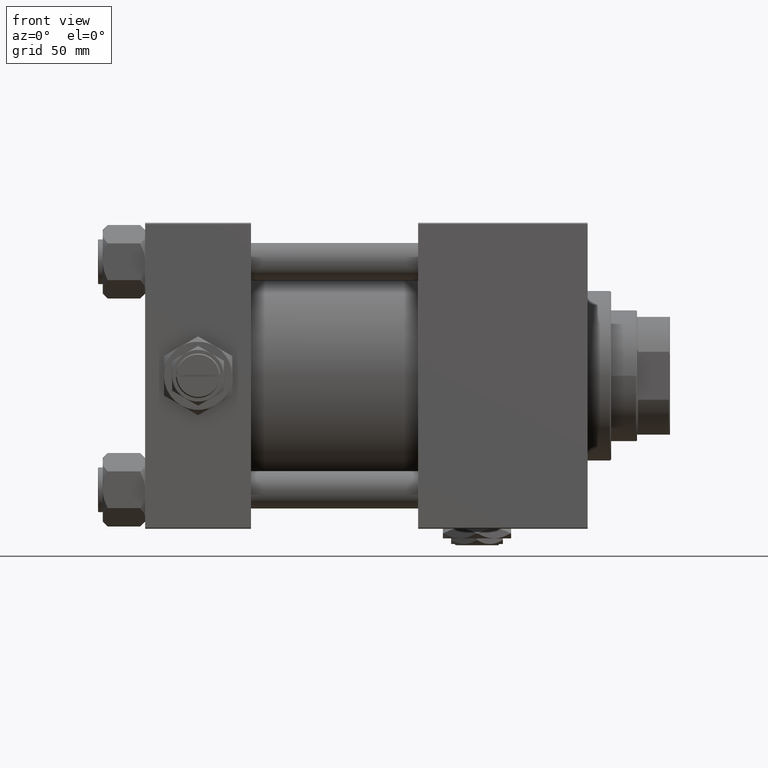
[diagram: clean part render]
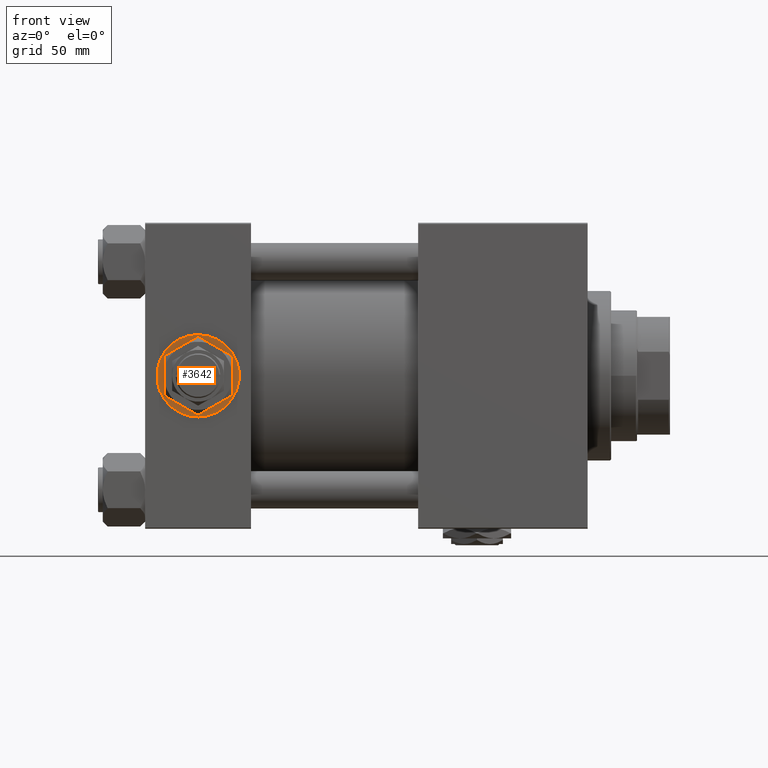
[diagram: same view with one face highlighted and labeled with its STEP entity id]
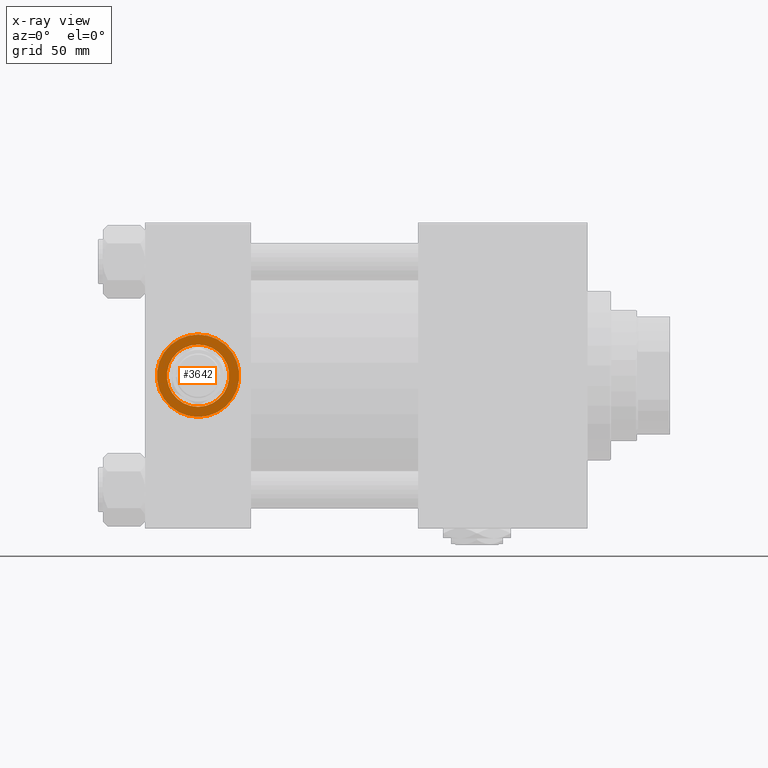
[diagram: x-ray of the same camera — body ghosted, the highlighted face saturated]
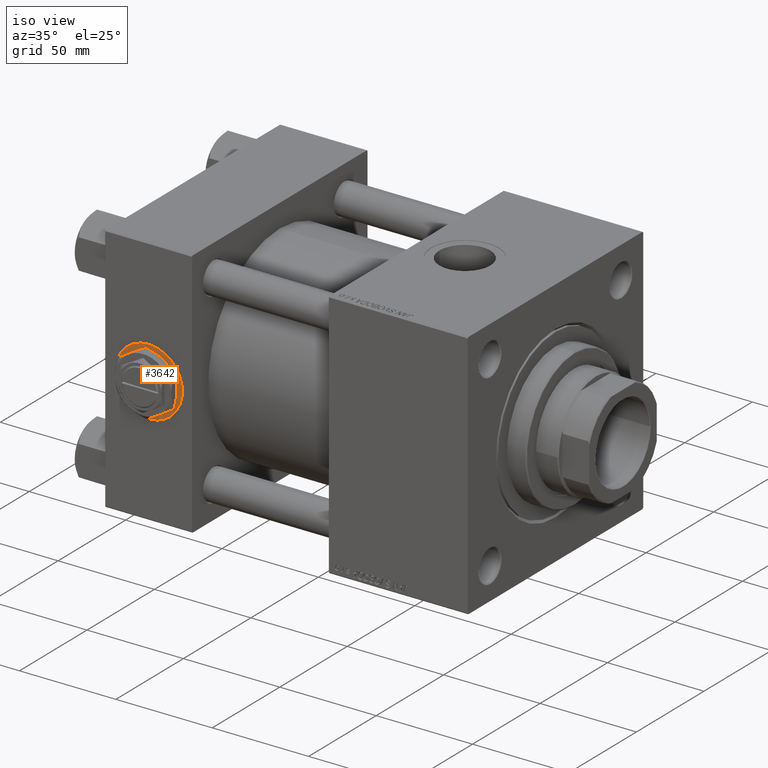
[diagram: same view with one face highlighted and labeled with its STEP entity id]
A machine part, front view. The second image highlights one B-rep face of the part: STEP entity #3642.
The next image is the same camera in x-ray: the body ghosted, the highlighted face saturated — about 0% of this face is hidden behind the body in this view.
A second angle (iso view) of the same face is appended — the face is thin or edge-on in the first view.
In plain terms, the highlighted planar face has unit normal (0, -1, -0).
Its self-contained STEP definition (entity closure, byte-faithful):
#738 = DIRECTION ( 'NONE',  ( 0.000000000000000000, 0.000000000000000000, -1.000000000000000000 ) ) ;
#1194 = AXIS2_PLACEMENT_3D ( 'NONE', #46401, #30385, #4585 ) ;
#3642 = ADVANCED_FACE ( 'NONE', ( #37637, #12837 ), #28843, .T. ) ;
#4585 = DIRECTION ( 'NONE',  ( 0.000000000000000000, 0.000000000000000000, -1.000000000000000000 ) ) ;
#5023 = EDGE_CURVE ( 'NONE', #13591, #19489, #39690, .T. ) ;
#5174 = CARTESIAN_POINT ( 'NONE',  ( 22.50000000000000000, -64.79999999999999716, -13.22000000000000419 ) ) ;
#5371 = CIRCLE ( 'NONE', #7085, 13.22000000000000419 ) ;
#6622 = CARTESIAN_POINT ( 'NONE',  ( 22.50000000000000000, -64.79999999999999716, 1.734723475976770117E-17 ) ) ;
#6964 = DIRECTION ( 'NONE',  ( 0.000000000000000000, -1.000000000000000000, -8.673617379884036705E-17 ) ) ;
#7085 = AXIS2_PLACEMENT_3D ( 'NONE', #25011, #8748, #738 ) ;
#8574 = DIRECTION ( 'NONE',  ( 0.000000000000000000, -1.000000000000000000, -8.673617379884036705E-17 ) ) ;
#8748 = DIRECTION ( 'NONE',  ( 0.000000000000000000, -1.000000000000000000, -8.673617379884036705E-17 ) ) ;
#10969 = CARTESIAN_POINT ( 'NONE',  ( 22.50000000000000000, -64.79999999999999716, 1.734723475976807403E-17 ) ) ;
#12837 = FACE_OUTER_BOUND ( 'NONE', #35101, .T. ) ;
#13591 = VERTEX_POINT ( 'NONE', #5174 ) ;
#13653 = ORIENTED_EDGE ( 'NONE', *, *, #16231, .T. ) ;
#13688 = CARTESIAN_POINT ( 'NONE',  ( 22.50000000000000000, -64.79999999999999716, -17.50000000000000000 ) ) ;
#14114 = ORIENTED_EDGE ( 'NONE', *, *, #25958, .F. ) ;
#16161 = CARTESIAN_POINT ( 'NONE',  ( 22.50000000000000355, -64.79999999999999716, 17.50000000000000000 ) ) ;
#16231 = EDGE_CURVE ( 'NONE', #16486, #48208, #44269, .T. ) ;
#16486 = VERTEX_POINT ( 'NONE', #16161 ) ;
#19464 = ORIENTED_EDGE ( 'NONE', *, *, #5023, .F. ) ;
#19489 = VERTEX_POINT ( 'NONE', #20642 ) ;
#20642 = CARTESIAN_POINT ( 'NONE',  ( 22.50000000000000000, -64.79999999999999716, 13.22000000000000419 ) ) ;
#23495 = AXIS2_PLACEMENT_3D ( 'NONE', #6622, #26638, #30108 ) ;
#25011 = CARTESIAN_POINT ( 'NONE',  ( 22.50000000000000000, -64.79999999999999716, 1.734723475976770117E-17 ) ) ;
#25361 = DIRECTION ( 'NONE',  ( 0.000000000000000000, 8.673617379884036705E-17, -1.000000000000000000 ) ) ;
#25958 = EDGE_CURVE ( 'NONE', #19489, #13591, #5371, .T. ) ;
#26638 = DIRECTION ( 'NONE',  ( 0.000000000000000000, -1.000000000000000000, -8.673617379884036705E-17 ) ) ;
#27756 = ORIENTED_EDGE ( 'NONE', *, *, #28982, .T. ) ;
#28843 = PLANE ( 'NONE',  #43929 ) ;
#28982 = EDGE_CURVE ( 'NONE', #48208, #16486, #29318, .T. ) ;
#29318 = CIRCLE ( 'NONE', #1194, 17.50000000000000000 ) ;
#30108 = DIRECTION ( 'NONE',  ( 0.000000000000000000, 0.000000000000000000, -1.000000000000000000 ) ) ;
#30385 = DIRECTION ( 'NONE',  ( 0.000000000000000000, -1.000000000000000000, -8.673617379884036705E-17 ) ) ;
#32366 = EDGE_LOOP ( 'NONE', ( #19464, #14114 ) ) ;
#34176 = DIRECTION ( 'NONE',  ( 0.000000000000000000, 0.000000000000000000, -1.000000000000000000 ) ) ;
#35101 = EDGE_LOOP ( 'NONE', ( #27756, #13653 ) ) ;
#37431 = AXIS2_PLACEMENT_3D ( 'NONE', #10969, #6964, #34176 ) ;
#37637 = FACE_BOUND ( 'NONE', #32366, .T. ) ;
#39690 = CIRCLE ( 'NONE', #23495, 13.22000000000000419 ) ;
#43929 = AXIS2_PLACEMENT_3D ( 'NONE', #45127, #8574, #25361 ) ;
#44269 = CIRCLE ( 'NONE', #37431, 17.50000000000000000 ) ;
#45127 = CARTESIAN_POINT ( 'NONE',  ( 22.50000000000000000, -64.79999999999999716, 1.734723475976807403E-17 ) ) ;
#46401 = CARTESIAN_POINT ( 'NONE',  ( 22.50000000000000000, -64.79999999999999716, 1.734723475976807403E-17 ) ) ;
#48208 = VERTEX_POINT ( 'NONE', #13688 ) ;